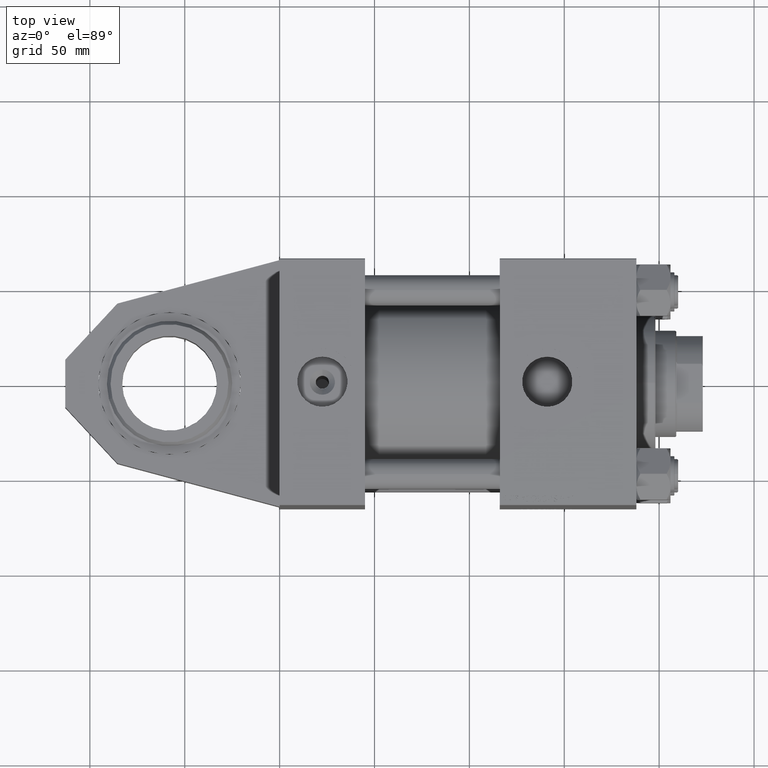
[diagram: clean part render]
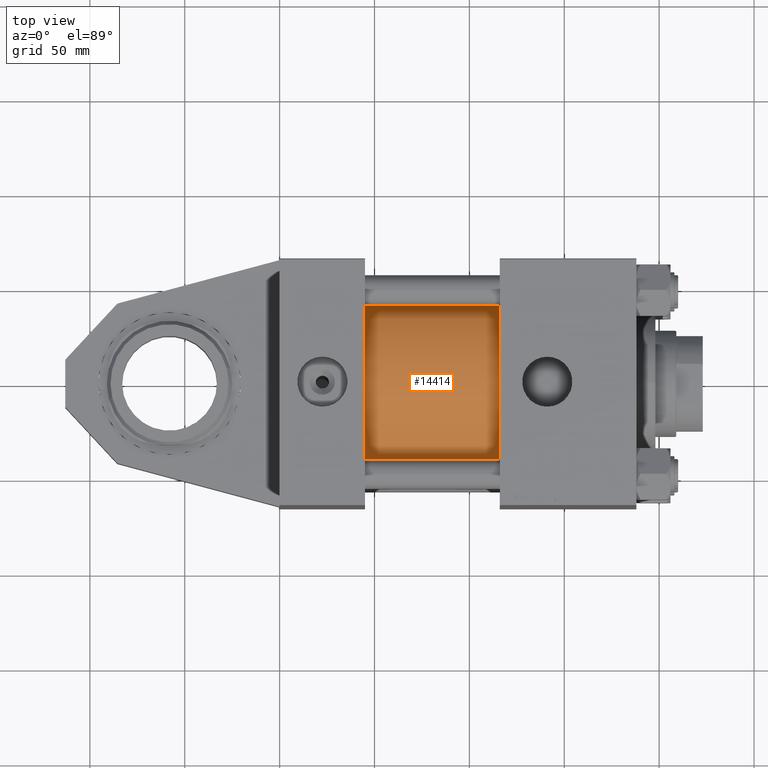
[diagram: same view with one face highlighted and labeled with its STEP entity id]
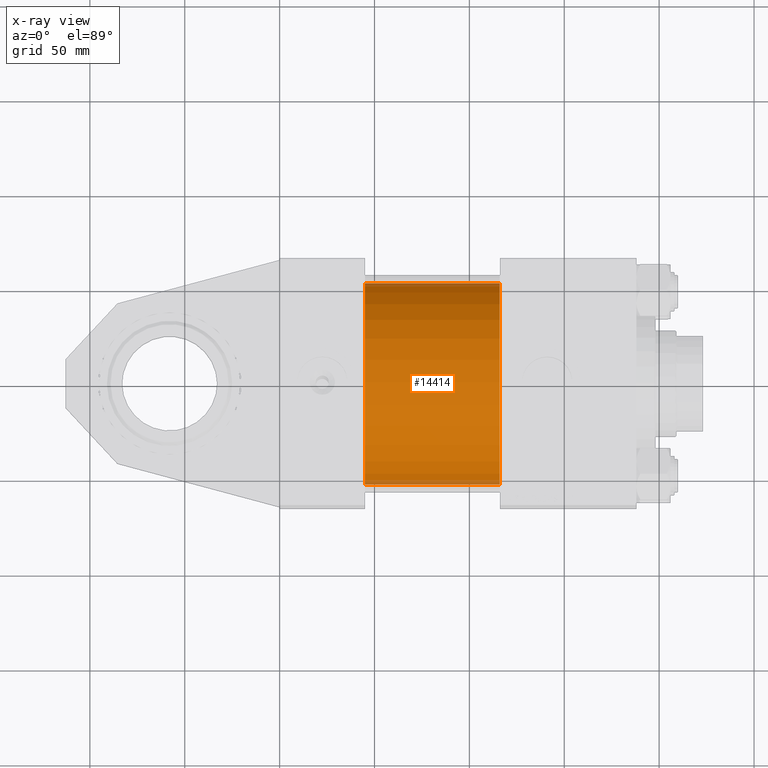
[diagram: x-ray of the same camera — body ghosted, the highlighted face saturated]
A machine part, top view. The second image highlights one B-rep face of the part: STEP entity #14414.
The next image is the same camera in x-ray: the body ghosted, the highlighted face saturated — about 4% of this face is hidden behind the body in this view.
In plain terms, the highlighted cylindrical surface (partial cylindrical patch) has radius 53 mm, axis along (-1, 0, -0).
Its self-contained STEP definition (entity closure, byte-faithful):
#149 = LINE ( 'NONE', #20142, #50840 ) ;
#378 = ORIENTED_EDGE ( 'NONE', *, *, #39146, .T. ) ;
#2260 = CARTESIAN_POINT ( 'NONE',  ( 45.00000000000000000, -2.602085213965210642E-15, 53.00000000000000711 ) ) ;
#4891 = VERTEX_POINT ( 'NONE', #47738 ) ;
#5037 = AXIS2_PLACEMENT_3D ( 'NONE', #51257, #46993, #35526 ) ;
#5113 = EDGE_LOOP ( 'NONE', ( #28963, #378, #20673, #49358 ) ) ;
#8930 = EDGE_CURVE ( 'NONE', #48482, #9902, #45587, .T. ) ;
#9080 = DIRECTION ( 'NONE',  ( -1.000000000000000000, -0.000000000000000000, -0.000000000000000000 ) ) ;
#9902 = VERTEX_POINT ( 'NONE', #2260 ) ;
#11916 = CIRCLE ( 'NONE', #51931, 53.00000000000000711 ) ;
#12472 = VECTOR ( 'NONE', #9080, 1000.000000000000000 ) ;
#14303 = DIRECTION ( 'NONE',  ( 1.000000000000000000, 0.000000000000000000, 0.000000000000000000 ) ) ;
#14414 = ADVANCED_FACE ( 'NONE', ( #18751 ), #34999, .T. ) ;
#17250 = AXIS2_PLACEMENT_3D ( 'NONE', #23647, #31378, #19394 ) ;
#18751 = FACE_OUTER_BOUND ( 'NONE', #5113, .T. ) ;
#19394 = DIRECTION ( 'NONE',  ( 0.000000000000000000, 0.000000000000000000, 1.000000000000000000 ) ) ;
#19499 = EDGE_CURVE ( 'NONE', #34477, #48482, #11916, .T. ) ;
#20142 = CARTESIAN_POINT ( 'NONE',  ( 115.9999999999999858, 3.888542821515762466E-15, -53.00000000000000711 ) ) ;
#20473 = CARTESIAN_POINT ( 'NONE',  ( 115.9999999999999858, 3.888542821515762466E-15, -53.00000000000000711 ) ) ;
#20673 = ORIENTED_EDGE ( 'NONE', *, *, #50666, .T. ) ;
#21063 = CARTESIAN_POINT ( 'NONE',  ( 115.9999999999999858, -2.602085213965210642E-15, 53.00000000000000711 ) ) ;
#21482 = CIRCLE ( 'NONE', #17250, 53.00000000000000711 ) ;
#23647 = CARTESIAN_POINT ( 'NONE',  ( 45.00000000000000000, -2.602085213965210642E-15, 0.000000000000000000 ) ) ;
#28008 = CARTESIAN_POINT ( 'NONE',  ( 115.9999999999999858, -2.602085213965210642E-15, 53.00000000000000711 ) ) ;
#28963 = ORIENTED_EDGE ( 'NONE', *, *, #19499, .F. ) ;
#31378 = DIRECTION ( 'NONE',  ( 1.000000000000000000, -0.000000000000000000, 0.000000000000000000 ) ) ;
#34477 = VERTEX_POINT ( 'NONE', #20473 ) ;
#34999 = CYLINDRICAL_SURFACE ( 'NONE', #5037, 53.00000000000000711 ) ;
#35526 = DIRECTION ( 'NONE',  ( 0.000000000000000000, 0.000000000000000000, 1.000000000000000000 ) ) ;
#39146 = EDGE_CURVE ( 'NONE', #34477, #4891, #149, .T. ) ;
#40384 = DIRECTION ( 'NONE',  ( -1.000000000000000000, -0.000000000000000000, -0.000000000000000000 ) ) ;
#42041 = DIRECTION ( 'NONE',  ( 0.000000000000000000, 0.000000000000000000, -1.000000000000000000 ) ) ;
#45587 = LINE ( 'NONE', #21063, #12472 ) ;
#46038 = CARTESIAN_POINT ( 'NONE',  ( 115.9999999999999858, -2.602085213965210642E-15, 0.000000000000000000 ) ) ;
#46993 = DIRECTION ( 'NONE',  ( -1.000000000000000000, -0.000000000000000000, -0.000000000000000000 ) ) ;
#47738 = CARTESIAN_POINT ( 'NONE',  ( 45.00000000000000000, 3.888542821515762466E-15, -53.00000000000000711 ) ) ;
#48482 = VERTEX_POINT ( 'NONE', #28008 ) ;
#49358 = ORIENTED_EDGE ( 'NONE', *, *, #8930, .F. ) ;
#50666 = EDGE_CURVE ( 'NONE', #4891, #9902, #21482, .T. ) ;
#50840 = VECTOR ( 'NONE', #40384, 1000.000000000000000 ) ;
#51257 = CARTESIAN_POINT ( 'NONE',  ( 115.9999999999999858, -2.602085213965210642E-15, 0.000000000000000000 ) ) ;
#51931 = AXIS2_PLACEMENT_3D ( 'NONE', #46038, #14303, #42041 ) ;